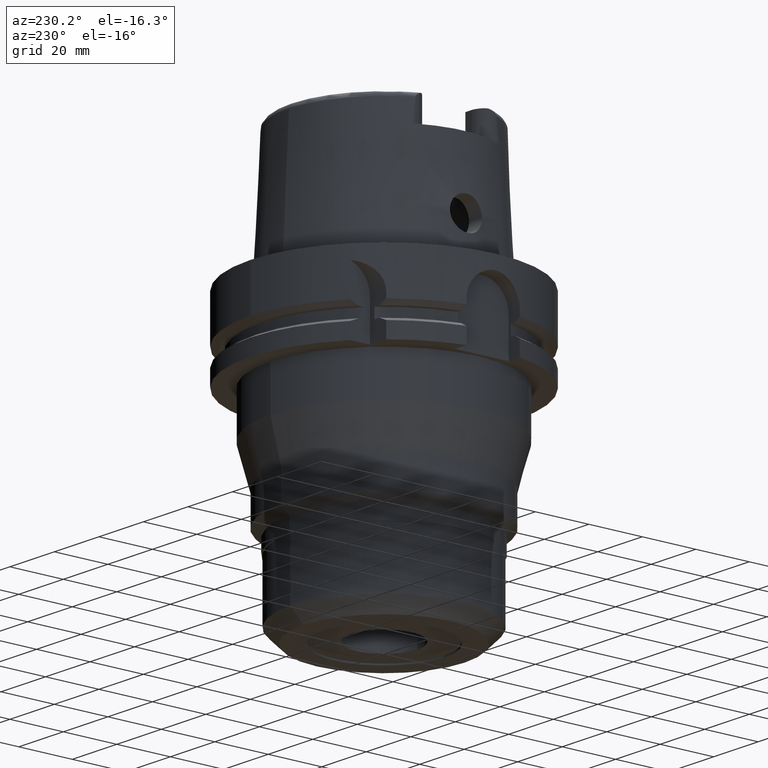
[diagram: clean part render]
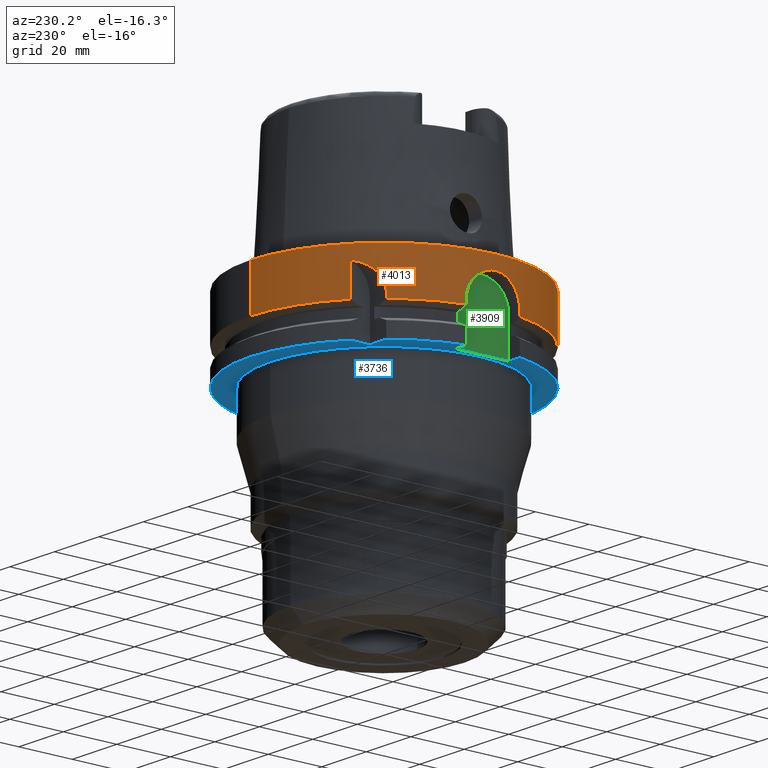
[diagram: same view with three faces highlighted in distinct colors, each labeled with its STEP entity id]
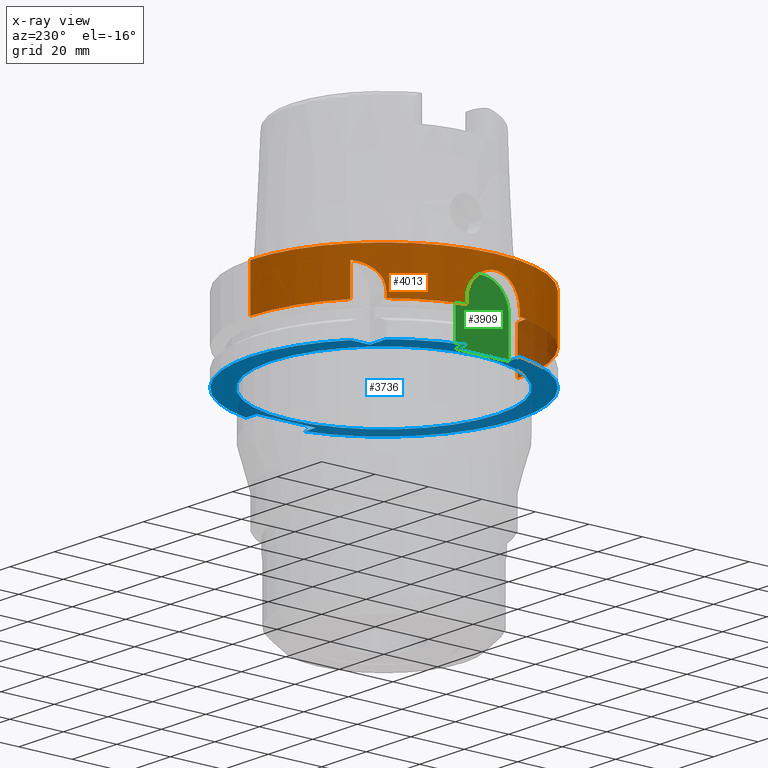
[diagram: x-ray of the same camera — body ghosted, the three highlighted faces saturated]
A machine part, auxiliary view with three faces highlighted in distinct colors.
The next image is the same camera in x-ray (body ghosted, the three faces saturated) — at least one of them is partly hidden behind the body in this view.
Their STEP definitions:

[orange] entity #4013 — the highlighted cylindrical surface (partial cylindrical patch) has radius 50 mm, axis along (0, 0, -1).
#1614=DIRECTION('',(7.023958081267E-8,5.698055157315E-8,-1.E0));
#1615=VECTOR('',#1614,1.175240773721E1);
#1616=CARTESIAN_POINT('',(-3.15E1,3.882975663071E1,-5.000000000003E0));
#1617=LINE('',#1616,#1615);
#1621=DIRECTION('',(0.E0,2.926591706721E-14,-1.E0));
#1622=VECTOR('',#1621,1.675240473581E1);
#1623=CARTESIAN_POINT('',(0.E0,-5.E1,0.E0));
#1624=LINE('',#1623,#1622);
#1628=DIRECTION('',(3.933032361779E-13,-2.432803522750E-14,1.E0));
#1629=VECTOR('',#1628,1.752404735809E0);
#1630=CARTESIAN_POINT('',(-4.898979485566E1,-1.E1,-1.675240473581E1));
#1631=LINE('',#1630,#1629);
#1635=DIRECTION('',(-4.014125812538E-13,-2.230069895855E-14,-1.E0));
#1636=VECTOR('',#1635,1.752404735809E0);
#1637=CARTESIAN_POINT('',(-4.898979485566E1,1.E1,-1.5E1));
#1638=LINE('',#1637,#1636);
#1642=DIRECTION('',(-1.365148137456E-6,-1.682804141260E-6,9.999999999977E-1));
#1643=VECTOR('',#1642,2.115493932319E0);
#1644=CARTESIAN_POINT('',(-3.882975374275E1,3.150000355996E1,
-1.675239179152E1));
#1645=LINE('',#1644,#1643);
#1649=CARTESIAN_POINT('',(-3.882975663071E1,3.15E1,-1.463689785921E1));
#1650=CARTESIAN_POINT('',(-3.882975663071E1,3.15E1,-1.433064342893E1));
#1651=CARTESIAN_POINT('',(-3.880705346286E1,3.152801718778E1,
-1.372016625754E1));
#1652=CARTESIAN_POINT('',(-3.870428957262E1,3.165427331501E1,
-1.280790055413E1));
#1653=CARTESIAN_POINT('',(-3.853134850640E1,3.186487834353E1,
-1.190701964612E1));
#1654=CARTESIAN_POINT('',(-3.828482144007E1,3.216110858182E1,
-1.102043676646E1));
#1655=CARTESIAN_POINT('',(-3.796154804800E1,3.254265143577E1,
-1.015735159449E1));
#1656=CARTESIAN_POINT('',(-3.755551642812E1,3.301117402568E1,
-9.321695418311E0));
#1657=CARTESIAN_POINT('',(-3.705884727797E1,3.356873676211E1,
-8.519817764195E0));
#1658=CARTESIAN_POINT('',(-3.646396640480E1,3.421517395100E1,
-7.761546915271E0));
#1659=CARTESIAN_POINT('',(-3.575808908983E1,3.495363799022E1,
-7.053883384559E0));
#1660=CARTESIAN_POINT('',(-3.493061309859E1,3.578230705221E1,
-6.409702713245E0));
#1661=CARTESIAN_POINT('',(-3.396220128115E1,3.670479057603E1,
-5.838576554905E0));
#1662=CARTESIAN_POINT('',(-3.283741698438E1,3.771690123508E1,
-5.356674864014E0));
#1663=CARTESIAN_POINT('',(-3.196701068328E1,3.845090191206E1,
-5.104975098335E0));
#1664=CARTESIAN_POINT('',(-3.15E1,3.882975663071E1,-5.000000000003E0));
#1669=CARTESIAN_POINT('',(-3.149999917452E1,3.882975730037E1,
-1.675240773721E1));
#1697=CARTESIAN_POINT('',(0.E0,1.011084288786E-14,-1.675240473581E1));
#1698=DIRECTION('',(0.E0,0.E0,1.E0));
#1699=DIRECTION('',(0.E0,1.E0,0.E0));
#1700=AXIS2_PLACEMENT_3D('',#1697,#1698,#1699);
#1844=DIRECTION('',(0.E0,-2.926591706721E-14,-1.E0));
#1845=VECTOR('',#1844,1.675240473581E1);
#1846=CARTESIAN_POINT('',(0.E0,5.E1,0.E0));
#1847=LINE('',#1846,#1845);
#1918=CARTESIAN_POINT('',(0.E0,1.011084288786E-14,-1.675240473581E1));
#1919=DIRECTION('',(0.E0,0.E0,1.E0));
#1920=DIRECTION('',(-9.797958971133E-1,-2.E-1,0.E0));
#1921=AXIS2_PLACEMENT_3D('',#1918,#1919,#1920);
#2072=CARTESIAN_POINT('',(0.E0,1.932247719695E-14,1.421085471520E-14));
#2073=DIRECTION('',(0.E0,0.E0,-1.E0));
#2074=DIRECTION('',(0.E0,-1.E0,0.E0));
#2075=AXIS2_PLACEMENT_3D('',#2072,#2073,#2074);
#2104=CARTESIAN_POINT('',(-4.898979485566E1,1.E1,-1.5E1));
#2105=CARTESIAN_POINT('',(-4.898979485566E1,1.E1,-1.426108421348E1));
#2106=CARTESIAN_POINT('',(-4.902380311263E1,9.835573538899E0,
-1.277773992583E1));
#2107=CARTESIAN_POINT('',(-4.916882622779E1,9.096391995714E0,
-1.064602957860E1));
#2108=CARTESIAN_POINT('',(-4.938004876303E1,7.892537487341E0,
-8.720778003004E0));
#2109=CARTESIAN_POINT('',(-4.961473127622E1,6.281194473553E0,
-7.108978837197E0));
#2110=CARTESIAN_POINT('',(-4.982397740644E1,4.355987102823E0,
-5.904663065214E0));
#2111=CARTESIAN_POINT('',(-4.996651931951E1,2.226277086582E0,
-5.165424262044E0));
#2112=CARTESIAN_POINT('',(-5.001677283063E1,-1.478482415563E-3,
-4.917124628990E0));
#2113=CARTESIAN_POINT('',(-4.996638924491E1,-2.229126407096E0,
-5.166077861950E0));
#2114=CARTESIAN_POINT('',(-4.982374996763E1,-4.358568134869E0,
-5.905888711182E0));
#2115=CARTESIAN_POINT('',(-4.961443122689E1,-6.283535070482E0,
-7.110860686378E0));
#2116=CARTESIAN_POINT('',(-4.937976425029E1,-7.894254946228E0,
-8.722905220385E0));
#2117=CARTESIAN_POINT('',(-4.916857105309E1,-9.097828660047E0,
-1.064902157321E1));
#2118=CARTESIAN_POINT('',(-4.902369992622E1,-9.835971925922E0,
-1.278006749366E1));
#2119=CARTESIAN_POINT('',(-4.898979485566E1,-1.E1,-1.426200462930E1));
#2120=CARTESIAN_POINT('',(-4.898979485566E1,-1.E1,-1.5E1));
#2144=CARTESIAN_POINT('',(-3.882975374275E1,3.150000355996E1,
-1.675239179152E1));
#2149=CARTESIAN_POINT('',(0.E0,1.011084288786E-14,-1.675240473581E1));
#2150=DIRECTION('',(0.E0,0.E0,1.E0));
#2151=DIRECTION('',(-7.765951326142E-1,6.3E-1,0.E0));
#2152=AXIS2_PLACEMENT_3D('',#2149,#2150,#2151);
#2157=CARTESIAN_POINT('',(-4.898979485566E1,1.E1,-1.675240473581E1));
#2597=VERTEX_POINT('',#1669);
#2598=CARTESIAN_POINT('',(-3.15E1,3.882975663071E1,-5.000000000003E0));
#2599=VERTEX_POINT('',#2598);
#2618=CARTESIAN_POINT('',(-4.898979485566E1,-1.E1,-1.5E1));
#2619=VERTEX_POINT('',#2618);
#2620=CARTESIAN_POINT('',(-4.898979485566E1,-1.E1,-1.675240473581E1));
#2621=VERTEX_POINT('',#2620);
#2640=VERTEX_POINT('',#2157);
#2641=CARTESIAN_POINT('',(-4.898979485566E1,1.E1,-1.5E1));
#2642=VERTEX_POINT('',#2641);
#2681=CARTESIAN_POINT('',(0.E0,-5.E1,-1.675240473581E1));
#2682=VERTEX_POINT('',#2681);
#2686=CARTESIAN_POINT('',(0.E0,5.E1,-1.675240473581E1));
#2687=VERTEX_POINT('',#2686);
#2688=VERTEX_POINT('',#2144);
#2689=CARTESIAN_POINT('',(0.E0,5.E1,0.E0));
#2690=VERTEX_POINT('',#2689);
#2691=CARTESIAN_POINT('',(0.E0,-5.E1,1.421085471520E-14));
#2692=VERTEX_POINT('',#2691);
#2693=CARTESIAN_POINT('',(-3.882975663071E1,3.15E1,-1.463689785921E1));
#2694=VERTEX_POINT('',#2693);
#3987=CARTESIAN_POINT('',(0.E0,1.932247719695E-14,5.778E1));
#3988=DIRECTION('',(0.E0,0.E0,-1.E0));
#3989=DIRECTION('',(0.E0,-1.E0,0.E0));
#3990=AXIS2_PLACEMENT_3D('',#3987,#3988,#3989);
#3991=CYLINDRICAL_SURFACE('',#3990,5.E1);
#3992=ORIENTED_EDGE('',*,*,#3755,.T.);
#3994=ORIENTED_EDGE('',*,*,#3993,.F.);
#3996=ORIENTED_EDGE('',*,*,#3995,.F.);
#3998=ORIENTED_EDGE('',*,*,#3997,.F.);
#4000=ORIENTED_EDGE('',*,*,#3999,.T.);
#4002=ORIENTED_EDGE('',*,*,#4001,.F.);
#4003=ORIENTED_EDGE('',*,*,#3878,.T.);
#4005=ORIENTED_EDGE('',*,*,#4004,.F.);
#4006=ORIENTED_EDGE('',*,*,#3928,.T.);
#4008=ORIENTED_EDGE('',*,*,#4007,.F.);
#4009=ORIENTED_EDGE('',*,*,#3959,.T.);
#4010=ORIENTED_EDGE('',*,*,#3980,.T.);
#4011=EDGE_LOOP('',(#3992,#3994,#3996,#3998,#4000,#4002,#4003,#4005,#4006,#4008,
#4009,#4010));
#4012=FACE_OUTER_BOUND('',#4011,.F.);
#1665=B_SPLINE_CURVE_WITH_KNOTS('',3,(#1649,#1650,#1651,#1652,#1653,#1654,#1655,
#1656,#1657,#1658,#1659,#1660,#1661,#1662,#1663,#1664),.UNSPECIFIED.,.F.,.F.,(4,
1,1,1,1,1,1,1,1,1,1,1,1,4),(0.E0,7.692307692308E-2,1.538461538462E-1,
2.307692307692E-1,3.076923076923E-1,3.846153846154E-1,4.615384615385E-1,
5.384615384615E-1,6.153846153846E-1,6.923076923077E-1,7.692307692308E-1,
8.461538461538E-1,9.230769230769E-1,1.E0),.UNSPECIFIED.);
#1701=CIRCLE('',#1700,5.E1);
#1922=CIRCLE('',#1921,5.E1);
#2076=CIRCLE('',#2075,5.E1);
#2121=B_SPLINE_CURVE_WITH_KNOTS('',3,(#2104,#2105,#2106,#2107,#2108,#2109,#2110,
#2111,#2112,#2113,#2114,#2115,#2116,#2117,#2118,#2119,#2120),.UNSPECIFIED.,.F.,
.F.,(4,1,1,1,1,1,1,1,1,1,1,1,1,1,4),(0.E0,7.142857142857E-2,1.428571428571E-1,
2.142857142857E-1,2.857142857143E-1,3.571428571429E-1,4.285714285714E-1,5.E-1,
5.714285714286E-1,6.428571428571E-1,7.142857142857E-1,7.857142857143E-1,
8.571428571429E-1,9.285714285714E-1,1.E0),.UNSPECIFIED.);
#2153=CIRCLE('',#2152,5.E1);
#3755=EDGE_CURVE('',#2599,#2597,#1617,.T.);
#3878=EDGE_CURVE('',#2621,#2619,#1631,.T.);
#3928=EDGE_CURVE('',#2642,#2640,#1638,.T.);
#3959=EDGE_CURVE('',#2688,#2694,#1645,.T.);
#3980=EDGE_CURVE('',#2694,#2599,#1665,.T.);
#3993=EDGE_CURVE('',#2687,#2597,#1701,.T.);
#3995=EDGE_CURVE('',#2690,#2687,#1847,.T.);
#3997=EDGE_CURVE('',#2692,#2690,#2076,.T.);
#3999=EDGE_CURVE('',#2692,#2682,#1624,.T.);
#4001=EDGE_CURVE('',#2621,#2682,#1922,.T.);
#4004=EDGE_CURVE('',#2642,#2619,#2121,.T.);
#4007=EDGE_CURVE('',#2688,#2640,#2153,.T.);
#4013=ADVANCED_FACE('',(#4012),#3991,.T.);

[blue] entity #3736 — the highlighted planar face has unit normal (0, 0, -1).
#1309=DIRECTION('',(-1.E0,-4.798503851106E-14,0.E0));
#1310=VECTOR('',#1309,7.329756630709E0);
#1311=CARTESIAN_POINT('',(-3.15E1,3.15E1,-2.9E1));
#1312=LINE('',#1311,#1310);
#1316=CARTESIAN_POINT('',(0.E0,1.932247719695E-14,-2.9E1));
#1317=DIRECTION('',(0.E0,0.E0,1.E0));
#1318=DIRECTION('',(-7.765951326142E-1,6.3E-1,0.E0));
#1319=AXIS2_PLACEMENT_3D('',#1316,#1317,#1318);
#1324=DIRECTION('',(-1.E0,-4.627973610177E-14,0.E0));
#1325=VECTOR('',#1324,4.989794855662E0);
#1326=CARTESIAN_POINT('',(-4.4E1,-1.E1,-2.9E1));
#1327=LINE('',#1326,#1325);
#1331=CARTESIAN_POINT('',(0.E0,1.932247719695E-14,-2.9E1));
#1332=DIRECTION('',(0.E0,0.E0,1.E0));
#1333=DIRECTION('',(-9.797958971133E-1,-2.E-1,0.E0));
#1334=AXIS2_PLACEMENT_3D('',#1331,#1332,#1333);
#1339=CARTESIAN_POINT('',(0.E0,1.932247719695E-14,-2.9E1));
#1340=DIRECTION('',(0.E0,0.E0,1.E0));
#1341=DIRECTION('',(0.E0,-1.E0,0.E0));
#1342=AXIS2_PLACEMENT_3D('',#1339,#1340,#1341);
#1347=DIRECTION('',(1.E0,-1.897263253749E-14,0.E0));
#1348=VECTOR('',#1347,4.774993593029E0);
#1349=CARTESIAN_POINT('',(4.4E1,1.1E1,-2.9E1));
#1350=LINE('',#1349,#1348);
#1354=CARTESIAN_POINT('',(0.E0,1.932247719695E-14,-2.9E1));
#1355=DIRECTION('',(0.E0,0.E0,1.E0));
#1356=DIRECTION('',(9.754998718606E-1,2.2E-1,0.E0));
#1357=AXIS2_PLACEMENT_3D('',#1354,#1355,#1356);
#1362=CARTESIAN_POINT('',(0.E0,1.932247719695E-14,-2.9E1));
#1363=DIRECTION('',(0.E0,0.E0,1.E0));
#1364=DIRECTION('',(0.E0,1.E0,0.E0));
#1365=AXIS2_PLACEMENT_3D('',#1362,#1363,#1364);
#1370=CARTESIAN_POINT('',(0.E0,1.932247719695E-14,-2.9E1));
#1371=DIRECTION('',(0.E0,0.E0,-1.E0));
#1372=DIRECTION('',(0.E0,-1.E0,0.E0));
#1373=AXIS2_PLACEMENT_3D('',#1370,#1371,#1372);
#1378=CARTESIAN_POINT('',(0.E0,1.932247719695E-14,-2.9E1));
#1379=DIRECTION('',(0.E0,0.E0,-1.E0));
#1380=DIRECTION('',(0.E0,1.E0,0.E0));
#1381=AXIS2_PLACEMENT_3D('',#1378,#1379,#1380);
#1386=DIRECTION('',(4.798503851106E-14,1.E0,0.E0));
#1387=VECTOR('',#1386,7.329756630709E0);
#1388=CARTESIAN_POINT('',(-3.15E1,3.15E1,-2.9E1));
#1389=LINE('',#1388,#1387);
#1439=DIRECTION('',(0.E0,-1.E0,0.E0));
#1440=VECTOR('',#1439,2.2E1);
#1441=CARTESIAN_POINT('',(4.4E1,1.1E1,-2.9E1));
#1442=LINE('',#1441,#1440);
#1483=DIRECTION('',(1.E0,1.897263253749E-14,0.E0));
#1484=VECTOR('',#1483,4.774993593029E0);
#1485=CARTESIAN_POINT('',(4.4E1,-1.1E1,-2.9E1));
#1486=LINE('',#1485,#1484);
#1525=DIRECTION('',(0.E0,1.E0,0.E0));
#1526=VECTOR('',#1525,2.E1);
#1527=CARTESIAN_POINT('',(-4.4E1,-1.E1,-2.9E1));
#1528=LINE('',#1527,#1526);
#1548=DIRECTION('',(-1.E0,4.627973610177E-14,0.E0));
#1549=VECTOR('',#1548,4.989794855662E0);
#1550=CARTESIAN_POINT('',(-4.4E1,1.E1,-2.9E1));
#1551=LINE('',#1550,#1549);
#2558=CARTESIAN_POINT('',(0.E0,4.25E1,-2.9E1));
#2559=VERTEX_POINT('',#2558);
#2560=CARTESIAN_POINT('',(0.E0,-4.25E1,-2.9E1));
#2561=VERTEX_POINT('',#2560);
#2562=CARTESIAN_POINT('',(-3.15E1,3.15E1,-2.9E1));
#2563=CARTESIAN_POINT('',(-3.15E1,3.882975663071E1,-2.9E1));
#2564=VERTEX_POINT('',#2562);
#2565=VERTEX_POINT('',#2563);
#2566=CARTESIAN_POINT('',(-3.882975663071E1,3.15E1,-2.9E1));
#2567=VERTEX_POINT('',#2566);
#2568=CARTESIAN_POINT('',(-4.898979485566E1,1.E1,-2.9E1));
#2569=VERTEX_POINT('',#2568);
#2570=CARTESIAN_POINT('',(-4.4E1,1.E1,-2.9E1));
#2571=VERTEX_POINT('',#2570);
#2572=CARTESIAN_POINT('',(-4.4E1,-1.E1,-2.9E1));
#2573=VERTEX_POINT('',#2572);
#2574=CARTESIAN_POINT('',(-4.898979485566E1,-1.E1,-2.9E1));
#2575=VERTEX_POINT('',#2574);
#2576=CARTESIAN_POINT('',(-3.624306980271E-14,-5.E1,-2.9E1));
#2577=CARTESIAN_POINT('',(4.877499359303E1,-1.1E1,-2.9E1));
#2578=VERTEX_POINT('',#2576);
#2579=VERTEX_POINT('',#2577);
#2580=CARTESIAN_POINT('',(4.4E1,-1.1E1,-2.9E1));
#2581=VERTEX_POINT('',#2580);
#2582=CARTESIAN_POINT('',(4.4E1,1.1E1,-2.9E1));
#2583=VERTEX_POINT('',#2582);
#2584=CARTESIAN_POINT('',(4.877499359303E1,1.1E1,-2.9E1));
#2585=VERTEX_POINT('',#2584);
#2586=CARTESIAN_POINT('',(-6.019535474874E-14,5.E1,-2.9E1));
#2587=VERTEX_POINT('',#2586);
#3699=CARTESIAN_POINT('',(0.E0,0.E0,-2.9E1));
#3700=DIRECTION('',(0.E0,0.E0,-1.E0));
#3701=DIRECTION('',(0.E0,-1.E0,0.E0));
#3702=AXIS2_PLACEMENT_3D('',#3699,#3700,#3701);
#3703=PLANE('',#3702);
#3705=ORIENTED_EDGE('',*,*,#3704,.F.);
#3707=ORIENTED_EDGE('',*,*,#3706,.T.);
#3709=ORIENTED_EDGE('',*,*,#3708,.T.);
#3711=ORIENTED_EDGE('',*,*,#3710,.F.);
#3713=ORIENTED_EDGE('',*,*,#3712,.F.);
#3715=ORIENTED_EDGE('',*,*,#3714,.T.);
#3717=ORIENTED_EDGE('',*,*,#3716,.T.);
#3719=ORIENTED_EDGE('',*,*,#3718,.T.);
#3721=ORIENTED_EDGE('',*,*,#3720,.F.);
#3723=ORIENTED_EDGE('',*,*,#3722,.F.);
#3725=ORIENTED_EDGE('',*,*,#3724,.T.);
#3727=ORIENTED_EDGE('',*,*,#3726,.T.);
#3729=ORIENTED_EDGE('',*,*,#3728,.T.);
#3730=EDGE_LOOP('',(#3705,#3707,#3709,#3711,#3713,#3715,#3717,#3719,#3721,#3723,
#3725,#3727,#3729));
#3731=FACE_OUTER_BOUND('',#3730,.F.);
#3732=ORIENTED_EDGE('',*,*,#3692,.T.);
#3733=ORIENTED_EDGE('',*,*,#3681,.T.);
#3734=EDGE_LOOP('',(#3732,#3733));
#3735=FACE_BOUND('',#3734,.F.);
#1320=CIRCLE('',#1319,5.E1);
#1335=CIRCLE('',#1334,5.E1);
#1343=CIRCLE('',#1342,5.E1);
#1358=CIRCLE('',#1357,5.E1);
#1366=CIRCLE('',#1365,5.E1);
#1374=CIRCLE('',#1373,4.25E1);
#1382=CIRCLE('',#1381,4.25E1);
#3681=EDGE_CURVE('',#2559,#2561,#1382,.T.);
#3692=EDGE_CURVE('',#2561,#2559,#1374,.T.);
#3704=EDGE_CURVE('',#2564,#2565,#1389,.T.);
#3706=EDGE_CURVE('',#2564,#2567,#1312,.T.);
#3708=EDGE_CURVE('',#2567,#2569,#1320,.T.);
#3710=EDGE_CURVE('',#2571,#2569,#1551,.T.);
#3712=EDGE_CURVE('',#2573,#2571,#1528,.T.);
#3714=EDGE_CURVE('',#2573,#2575,#1327,.T.);
#3716=EDGE_CURVE('',#2575,#2578,#1335,.T.);
#3718=EDGE_CURVE('',#2578,#2579,#1343,.T.);
#3720=EDGE_CURVE('',#2581,#2579,#1486,.T.);
#3722=EDGE_CURVE('',#2583,#2581,#1442,.T.);
#3724=EDGE_CURVE('',#2583,#2585,#1350,.T.);
#3726=EDGE_CURVE('',#2585,#2587,#1358,.T.);
#3728=EDGE_CURVE('',#2587,#2565,#1366,.T.);
#3736=ADVANCED_FACE('',(#3731,#3735),#3703,.T.);

[green] entity #3909 — the highlighted planar face has unit normal (1, 0, 0).
#1511=DIRECTION('',(0.E0,0.E0,1.E0));
#1512=VECTOR('',#1511,1.4E1);
#1513=CARTESIAN_POINT('',(-4.4E1,-1.E1,-2.9E1));
#1514=LINE('',#1513,#1512);
#1525=DIRECTION('',(0.E0,1.E0,0.E0));
#1526=VECTOR('',#1525,2.E1);
#1527=CARTESIAN_POINT('',(-4.4E1,-1.E1,-2.9E1));
#1528=LINE('',#1527,#1526);
#1532=CARTESIAN_POINT('',(-4.4E1,0.E0,-1.5E1));
#1533=DIRECTION('',(1.E0,0.E0,0.E0));
#1534=DIRECTION('',(0.E0,1.E0,0.E0));
#1535=AXIS2_PLACEMENT_3D('',#1532,#1533,#1534);
#1540=CARTESIAN_POINT('',(-4.4E1,0.E0,-1.5E1));
#1541=DIRECTION('',(1.E0,0.E0,0.E0));
#1542=DIRECTION('',(0.E0,0.E0,1.E0));
#1543=AXIS2_PLACEMENT_3D('',#1540,#1541,#1542);
#1562=DIRECTION('',(0.E0,0.E0,-1.E0));
#1563=VECTOR('',#1562,1.4E1);
#1564=CARTESIAN_POINT('',(-4.4E1,1.E1,-1.5E1));
#1565=LINE('',#1564,#1563);
#2570=CARTESIAN_POINT('',(-4.4E1,1.E1,-2.9E1));
#2571=VERTEX_POINT('',#2570);
#2572=CARTESIAN_POINT('',(-4.4E1,-1.E1,-2.9E1));
#2573=VERTEX_POINT('',#2572);
#2616=CARTESIAN_POINT('',(-4.4E1,-1.E1,-1.5E1));
#2617=VERTEX_POINT('',#2616);
#2629=CARTESIAN_POINT('',(-4.4E1,1.E1,-1.5E1));
#2630=VERTEX_POINT('',#2629);
#2631=CARTESIAN_POINT('',(-4.4E1,0.E0,-5.E0));
#2632=VERTEX_POINT('',#2631);
#3894=CARTESIAN_POINT('',(-4.4E1,0.E0,0.E0));
#3895=DIRECTION('',(1.E0,0.E0,0.E0));
#3896=DIRECTION('',(0.E0,0.E0,1.E0));
#3897=AXIS2_PLACEMENT_3D('',#3894,#3895,#3896);
#3898=PLANE('',#3897);
#3899=ORIENTED_EDGE('',*,*,#3712,.T.);
#3901=ORIENTED_EDGE('',*,*,#3900,.F.);
#3903=ORIENTED_EDGE('',*,*,#3902,.T.);
#3905=ORIENTED_EDGE('',*,*,#3904,.T.);
#3906=ORIENTED_EDGE('',*,*,#3874,.F.);
#3907=EDGE_LOOP('',(#3899,#3901,#3903,#3905,#3906));
#3908=FACE_OUTER_BOUND('',#3907,.F.);
#1536=CIRCLE('',#1535,1.E1);
#1544=CIRCLE('',#1543,1.E1);
#3712=EDGE_CURVE('',#2573,#2571,#1528,.T.);
#3874=EDGE_CURVE('',#2573,#2617,#1514,.T.);
#3900=EDGE_CURVE('',#2630,#2571,#1565,.T.);
#3902=EDGE_CURVE('',#2630,#2632,#1536,.T.);
#3904=EDGE_CURVE('',#2632,#2617,#1544,.T.);
#3909=ADVANCED_FACE('',(#3908),#3898,.F.);